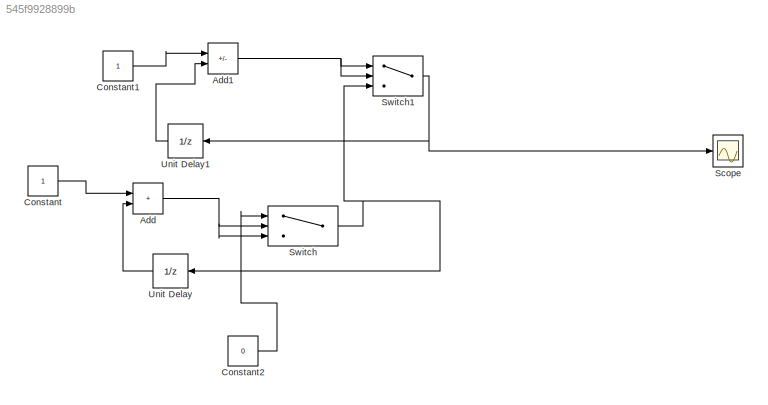
MODEL slx_545f9928899b
KIND model
CONFIG AbsTol = auto
CONFIG EnableMultiTasking = off
CONFIG FixedStep = auto
CONFIG MaxStep = auto
CONFIG MinStep = auto
CONFIG RelTol = 1e-3
CONFIG SampleTimeConstraint = Unconstrained
CONFIG SolverName = VariableStepAuto
CONFIG StartTime = 0.0
CONFIG StopTime = 10.0
BLOCK [Sum] Add
  IconShape = rectangular
BLOCK [Sum] Add1
  IconShape = rectangular
  Inputs = -+
BLOCK [Constant] Constant
BLOCK [Constant] Constant1
BLOCK [Constant] Constant2
  Value = 0
BLOCK [Scope] Scope
  Floating = off
  NumInputPorts = 1
  ScopeSpecificationString = Simulink.scopes.TimeScopeBlockCfg('CurrentConfiguration', extmgr.ConfigurationSet(extmgr.Configuration('Core','General UI',true),extmgr.Configuration('Core','Source UI',true),extmgr.Configuration('Sources','WiredSimulink',true),extmgr.Configuration('Visuals','Time Domain',true,'SerializedDisplays',{struct('MinYLimReal','-0.125','MaxYLimReal','11.125','YLabelReal','','MinYLimMag','0.00000','MaxYLim...<+1346ch>
BLOCK [Switch] Switch
  Criteria = u2 > Threshold
  InputSameDT = off
  SaturateOnIntegerOverflow = off
  Threshold = 10
BLOCK [Switch] Switch1
  Criteria = u2 > Threshold
  InputSameDT = off
  SaturateOnIntegerOverflow = off
BLOCK [UnitDelay] Unit Delay
  HasFrameUpgradeWarning = on
  SampleTime = -1
BLOCK [UnitDelay] Unit Delay1
  HasFrameUpgradeWarning = on
  SampleTime = -1
NET Add1:1 -> Switch1:1, Switch1:2
NET Add:1 -> Switch:2, Switch:3
LINE Constant1:1 -> Add1:1
LINE Constant2:1 -> Switch:1
LINE Constant:1 -> Add:1
NET Switch1:1 -> Scope:1, Unit Delay1:1
NET Switch:1 -> Switch1:3, Unit Delay:1
LINE Unit Delay1:1 -> Add1:2
LINE Unit Delay:1 -> Add:2
note: NET lines group one-source signal fan-out (src -> all destinations, sorted); 1:1 wires keep LINE
